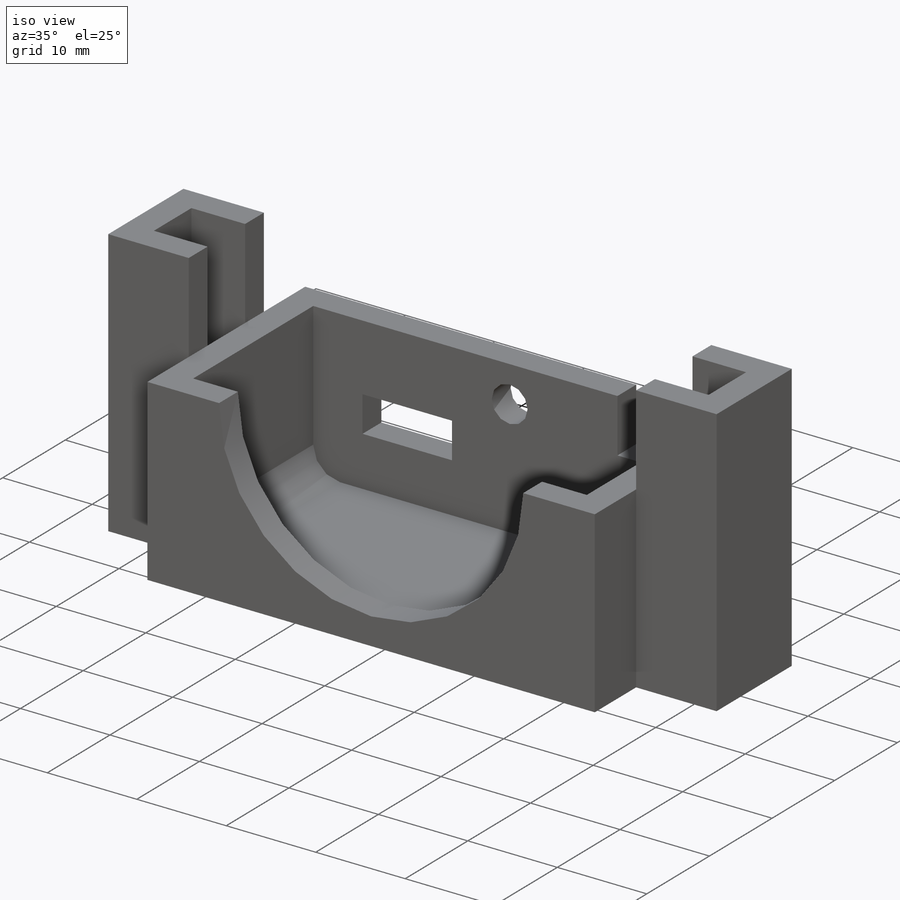
[diagram: iso view]
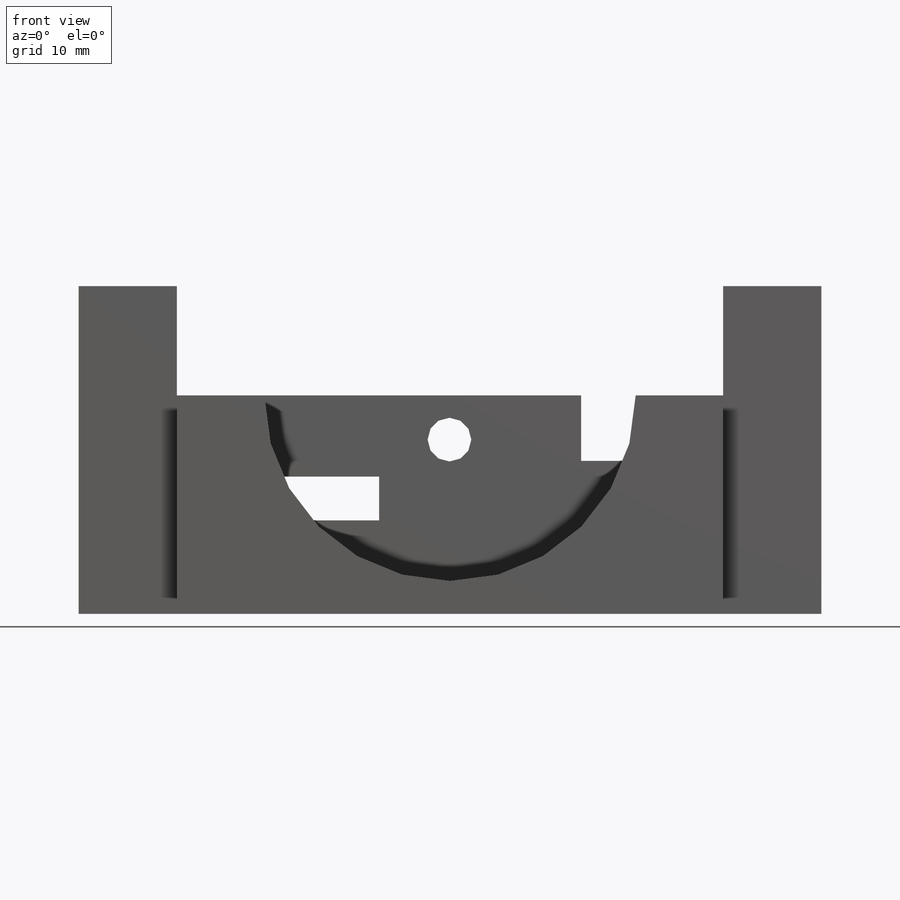
[diagram: front view]
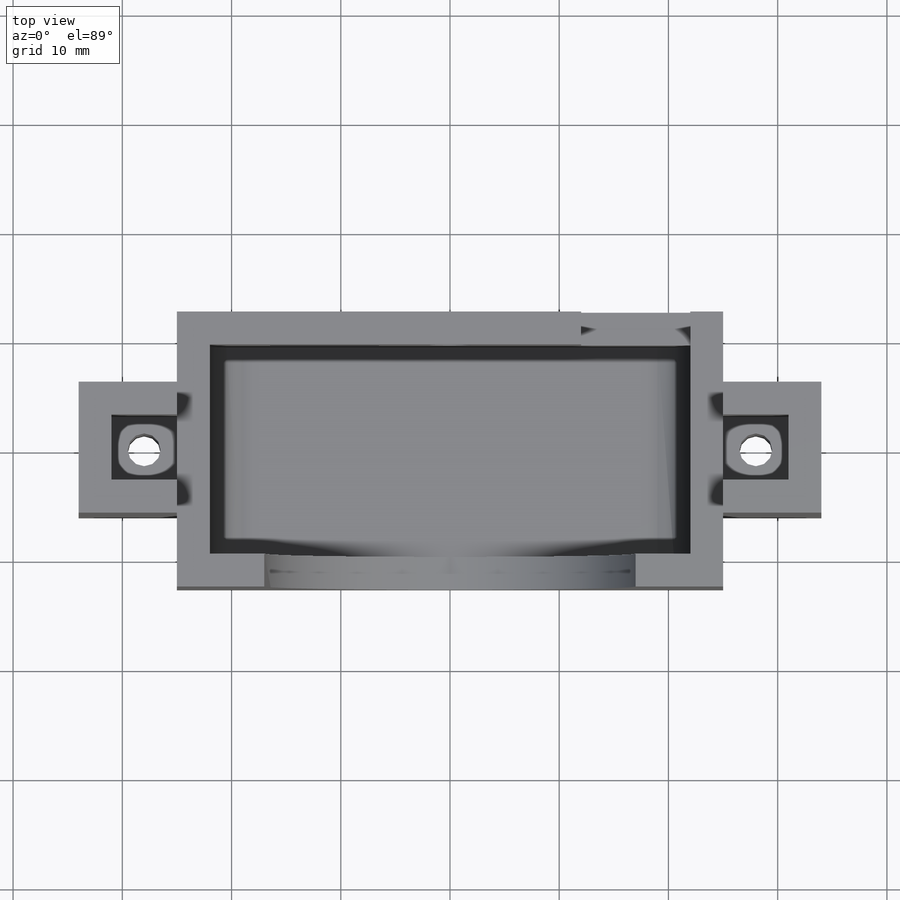
[diagram: top view]
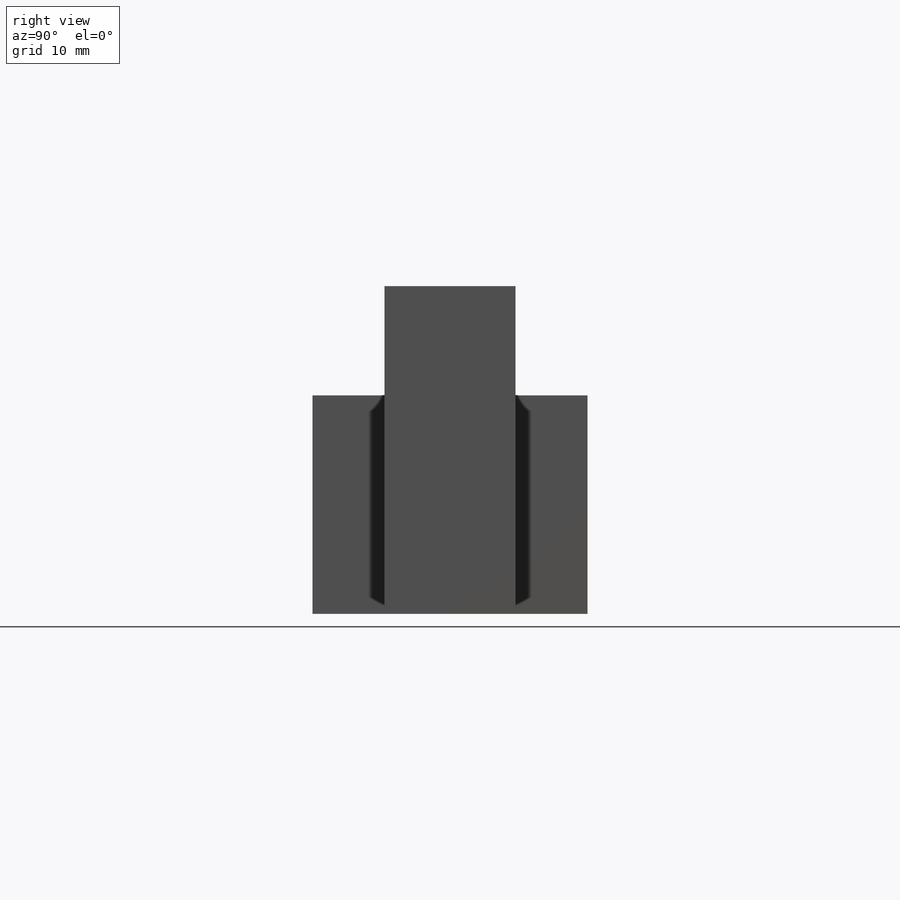
[diagram: right view]
SOLIDWORKS PART (.sldprt)
format: sldprt  version: not decoded by parser v0  size: 340,992 bytes
history: native  units: mm
features: sketch x6, extrude x3, cut_extrude x3, material x1, fillet x1 (+13 scaffold rows collapsed)
feature tree (27):
  scaffold x13  (default folders/planes/origin — collapsed)
  material  "Material <not specified>"
  sketch  "Sketch1"  dims[D1=44.0mm D2=19.18mm D3=50.0mm D4=25.18mm]
  extrude  "Boss-Extrude1"  Depth=20mm
  sketch  "Sketch2"  dims[D1=44.0mm D2=19.18mm]
  cut_extrude  "Cut-Extrude1"  Depth=17mm
  sketch  "Sketch4"  dims[c1.D3=34.0mm c1.D1=3.0mm c1.D2=44.0mm c1.19.18=17.0mm c1.D4=0.0mm c2.D3=17.0mm c2.D5=17.0mm]
  cut_extrude  "Cut-Extrude2"  [1 undecoded]
  sketch  "Sketch5"  dims[c1.D9=4.0mm c1.D1=3.0mm c1.D2=0.0mm c1.D3=44.0mm c1.D4=17.0mm c1.D5=10.0mm c1.D6=6.0mm c1.D7=22.05mm c1.D8=12.95mm c1.D10=7.56mm c2.D8=12.95mm c2.D11=33.49mm c2.D12=10.0mm c2.D13=4.0mm]
  cut_extrude  "Cut-Extrude3"  [1 undecoded]
  fillet  "Fillet1"  Radius=3mm
  sketch  "Sketch7"  dims[D4=3.0mm D1=3.0mm D2=6.0mm D3=6.0mm]
  extrude  "Boss-Extrude2"  Depth=16mm
  sketch  "Sketch8"  dims[c1.D1=3.0mm c1.D2=3.0mm c2.D1=3.0mm c2.D2=3.0mm]
  extrude  "Boss-Extrude3"  Depth=30mm
decode coverage: 11 of 13 modeling features carry decoded parameters
note: 2 parameter values undecoded
note: suppression state not decoded; provenance and decode notes live in map.json
